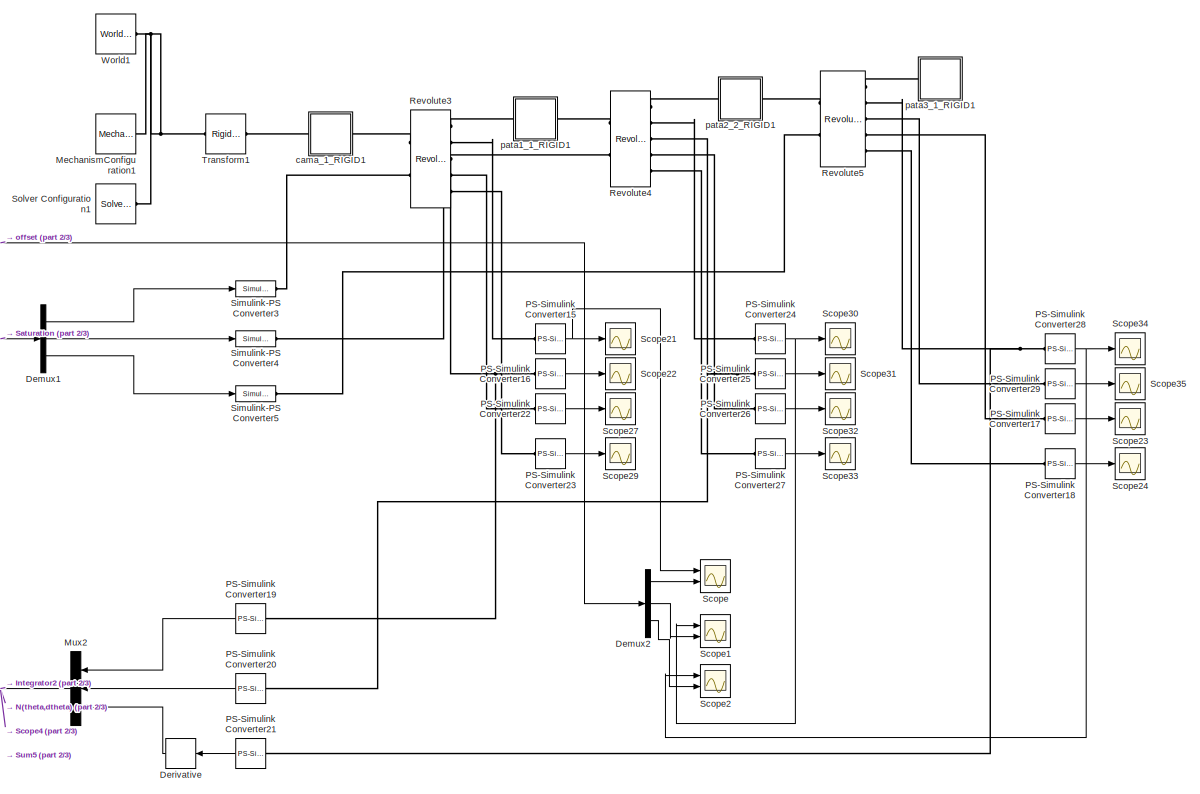
[diagram: root canvas - part 1/3, center side, full height]
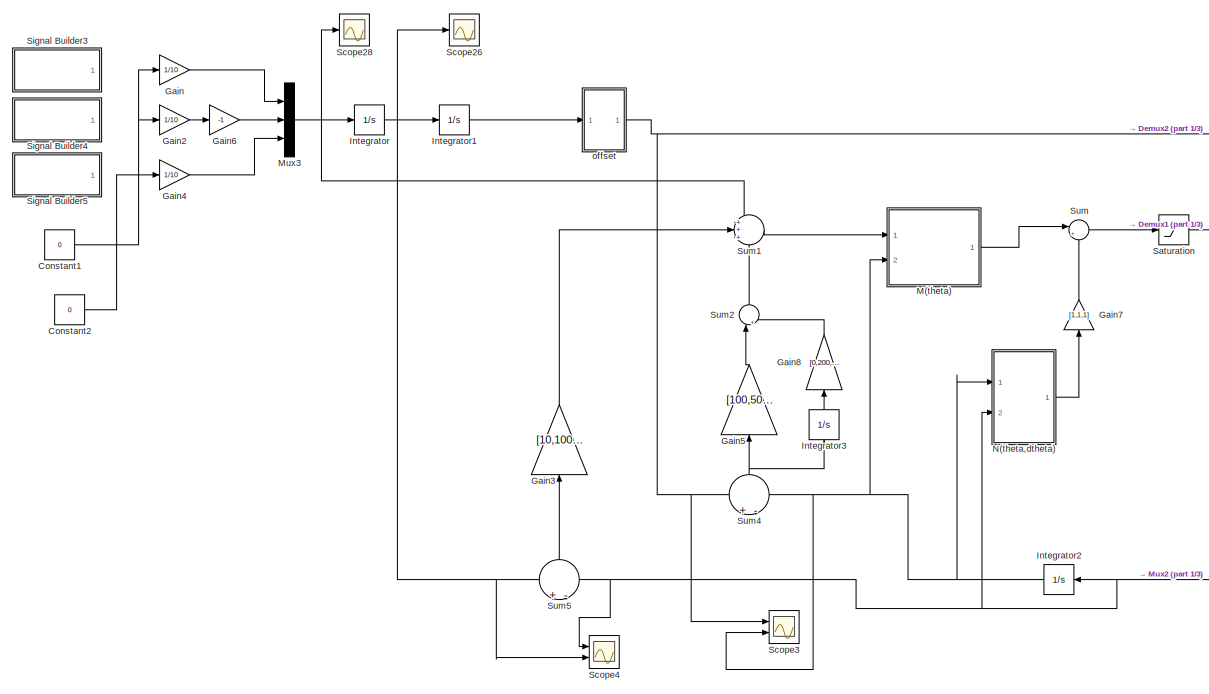
[diagram: root canvas - part 2/3, left side, full height]
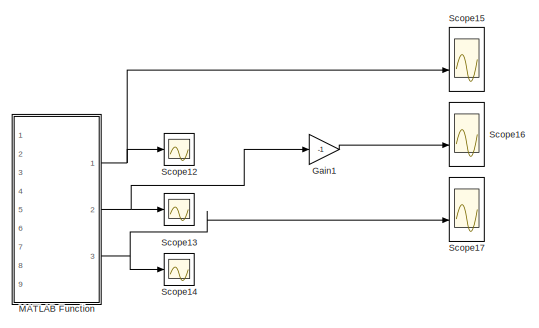
[diagram: root canvas - part 3/3, middle right region]
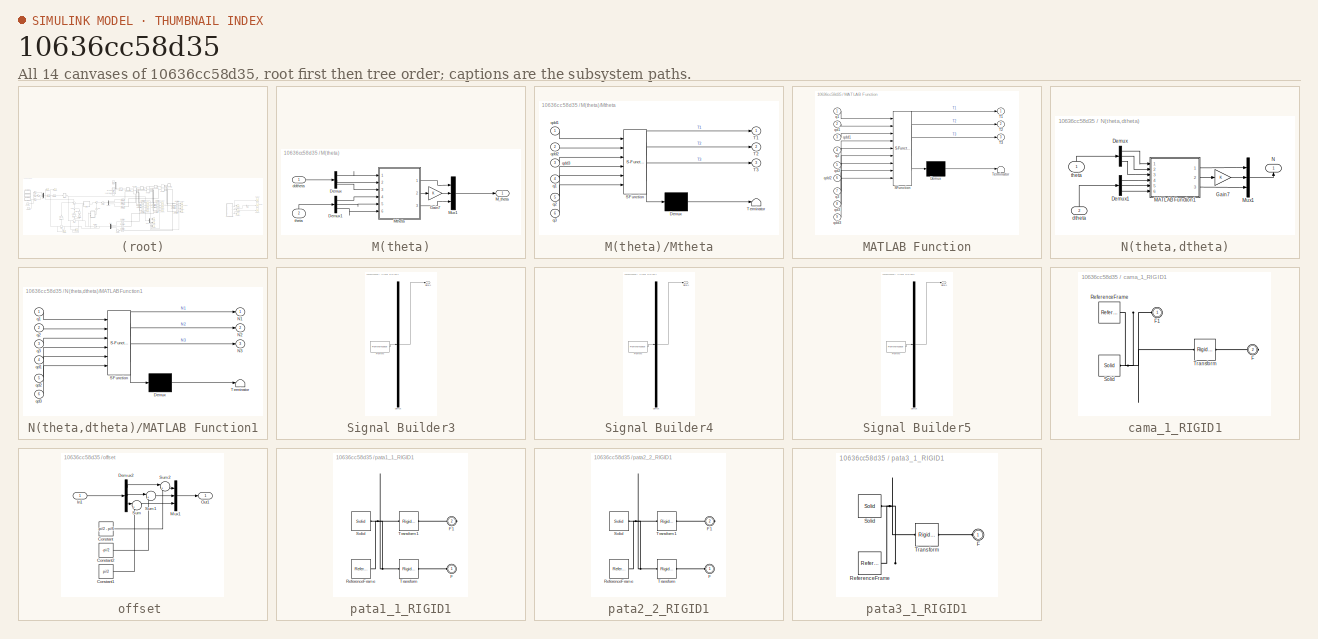
[diagram: thumbnail index - all 14 canvases of the model, root first then tree order]
MODEL slx_10636cc58d35
KIND model
CONFIG AbsTol = auto
CONFIG EnableMultiTasking = off
CONFIG FixedStep = auto
CONFIG MaxStep = auto
CONFIG MinStep = auto
CONFIG RelTol = 1e-3
CONFIG SampleTimeConstraint = Unconstrained
CONFIG Solver = VariableStepAuto
CONFIG SolverName = VariableStepAuto
CONFIG StartTime = 0.0
CONFIG StopTime = 30
WORKSPACE source: external: MATLAB File  (data not in archive)
BLOCK [Constant] Constant1
  Value = 0
BLOCK [Constant] Constant2
  Value = 0
BLOCK [Demux] Demux1
  DisplayOption = bar
  Outputs = 3
  Ports = [1, 3]
BLOCK [Demux] Demux2
  DisplayOption = bar
  Outputs = 3
  Ports = [1, 3]
BLOCK [Derivative] Derivative
BLOCK [Gain] Gain
  Gain = 1/10
  OutDataTypeStr = Inherit: Inherit via internal rule
  ParamDataTypeStr = Inherit: Inherit via internal rule
  SaturateOnIntegerOverflow = off
BLOCK [Gain] Gain1
  Commented = on
  Gain = -1
  OutDataTypeStr = Inherit: Inherit via internal rule
  ParamDataTypeStr = Inherit: Inherit via internal rule
  SaturateOnIntegerOverflow = off
BLOCK [Gain] Gain2
  Gain = 1/10
  OutDataTypeStr = Inherit: Inherit via internal rule
  ParamDataTypeStr = Inherit: Inherit via internal rule
  SaturateOnIntegerOverflow = off
BLOCK [Gain] Gain3
  Gain = [10,100,10]
  OutDataTypeStr = Inherit: Inherit via internal rule
  ParamDataTypeStr = Inherit: Inherit via internal rule
  SaturateOnIntegerOverflow = off
BLOCK [Gain] Gain4
  Gain = 1/10
  OutDataTypeStr = Inherit: Inherit via internal rule
  ParamDataTypeStr = Inherit: Inherit via internal rule
  SaturateOnIntegerOverflow = off
BLOCK [Gain] Gain5
  Gain = [100,500,10]
  OutDataTypeStr = Inherit: Inherit via internal rule
  ParamDataTypeStr = Inherit: Inherit via internal rule
  SaturateOnIntegerOverflow = off
BLOCK [Gain] Gain6
  Gain = -1
  OutDataTypeStr = Inherit: Inherit via internal rule
  ParamDataTypeStr = Inherit: Inherit via internal rule
  SaturateOnIntegerOverflow = off
BLOCK [Gain] Gain7
  Gain = [1,1,1]
  OutDataTypeStr = Inherit: Inherit via internal rule
  ParamDataTypeStr = Inherit: Inherit via internal rule
  SaturateOnIntegerOverflow = off
BLOCK [Gain] Gain8
  Gain = [0,200,2]
  OutDataTypeStr = Inherit: Inherit via internal rule
  ParamDataTypeStr = Inherit: Inherit via internal rule
  SaturateOnIntegerOverflow = off
BLOCK [Integrator] Integrator
  Ports = [1, 1]
BLOCK [Integrator] Integrator1
  Ports = [1, 1]
BLOCK [Integrator] Integrator2
  InitialCondition = [-pi/2 - pi/6,-pi/2,pi/2]
  Ports = [1, 1]
BLOCK [Integrator] Integrator3
  InitialCondition = [-pi/2 - pi/6,-pi/2,pi/2]
  Ports = [1, 1]
BLOCK [SubSystem] M(theta)
  Ports = [2, 1]
  RequestExecContextInheritance = off
  Variant = off
BLOCK [Demux] M(theta)/Demux
  DisplayOption = bar
  Outputs = 3
  Ports = [1, 3]
BLOCK [Demux] M(theta)/Demux1
  DisplayOption = bar
  Outputs = 3
  Ports = [1, 3]
BLOCK [Gain] M(theta)/Gain7
  OutDataTypeStr = Inherit: Inherit via internal rule
  ParamDataTypeStr = Inherit: Inherit via internal rule
  SaturateOnIntegerOverflow = off
BLOCK [Outport] M(theta)/M_theta
  IconDisplay = Port number
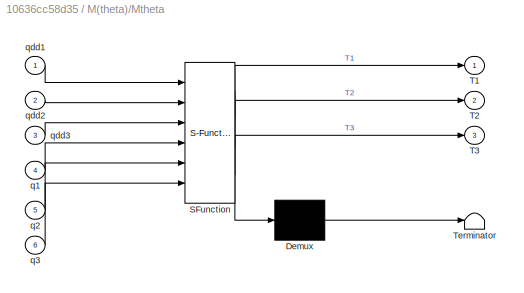
BLOCK [SubSystem] M(theta)/Mtheta
  ErrorFcn = Stateflow.Translate.translate
  PermitHierarchicalResolution = ExplicitOnly
  Ports = [6, 3]
  RequestExecContextInheritance = off
  SFBlockType = MATLAB Function
  TreatAsAtomicUnit = on
  Variant = off
BLOCK [Demux] M(theta)/Mtheta/ Demux 
  Outputs = 1
  Ports = [1, 1]
BLOCK [S-Function] M(theta)/Mtheta/ SFunction 
  EnableBusSupport = on
  FunctionName = sf_sfun
  PortCounts = [6 4]
  Ports = [6, 4]
  SFcnIsStateOwnerBlock = off
  SFunctionDeploymentMode = off
  Tag = Stateflow S-Function hex_simplify_mono 1
BLOCK [Terminator] M(theta)/Mtheta/ Terminator 
BLOCK [Outport] M(theta)/Mtheta/T1
  IconDisplay = Port number
BLOCK [Outport] M(theta)/Mtheta/T2
  IconDisplay = Port number
  Port = 2
BLOCK [Outport] M(theta)/Mtheta/T3
  IconDisplay = Port number
  Port = 3
BLOCK [Inport] M(theta)/Mtheta/q1
  IconDisplay = Port number
  Port = 4
BLOCK [Inport] M(theta)/Mtheta/q2
  IconDisplay = Port number
  Port = 5
BLOCK [Inport] M(theta)/Mtheta/q3
  IconDisplay = Port number
  Port = 6
BLOCK [Inport] M(theta)/Mtheta/qdd1
  IconDisplay = Port number
BLOCK [Inport] M(theta)/Mtheta/qdd2
  IconDisplay = Port number
  Port = 2
BLOCK [Inport] M(theta)/Mtheta/qdd3
  IconDisplay = Port number
  Port = 3
BLOCK [Mux] M(theta)/Mux1
  DisplayOption = bar
  Inputs = 3
  Ports = [3, 1]
BLOCK [Inport] M(theta)/ddtheta
  IconDisplay = Port number
BLOCK [Inport] M(theta)/theta
  IconDisplay = Port number
  Port = 2
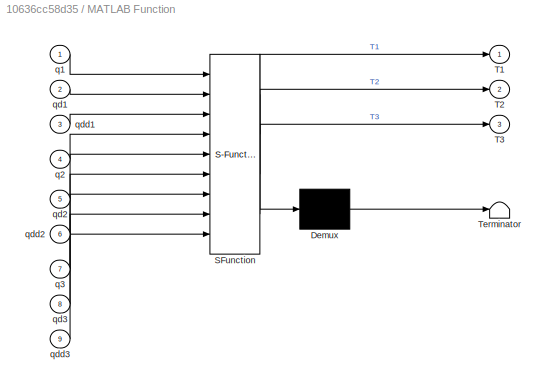
BLOCK [SubSystem] MATLAB Function
  Commented = on
  ErrorFcn = Stateflow.Translate.translate
  PermitHierarchicalResolution = ExplicitOnly
  Ports = [9, 3]
  RequestExecContextInheritance = off
  SFBlockType = MATLAB Function
  TreatAsAtomicUnit = on
  Variant = off
BLOCK [Demux] MATLAB Function/ Demux 
  Outputs = 1
  Ports = [1, 1]
BLOCK [S-Function] MATLAB Function/ SFunction 
  EnableBusSupport = on
  FunctionName = sf_sfun
  PortCounts = [9 4]
  Ports = [9, 4]
  SFcnIsStateOwnerBlock = off
  SFunctionDeploymentMode = off
  Tag = Stateflow S-Function hex_simplify_mono 2
BLOCK [Terminator] MATLAB Function/ Terminator 
BLOCK [Outport] MATLAB Function/T1
  IconDisplay = Port number
BLOCK [Outport] MATLAB Function/T2
  IconDisplay = Port number
  Port = 2
BLOCK [Outport] MATLAB Function/T3
  IconDisplay = Port number
  Port = 3
BLOCK [Inport] MATLAB Function/q1
  IconDisplay = Port number
BLOCK [Inport] MATLAB Function/q2
  IconDisplay = Port number
  Port = 4
BLOCK [Inport] MATLAB Function/q3
  IconDisplay = Port number
  Port = 7
BLOCK [Inport] MATLAB Function/qd1
  IconDisplay = Port number
  Port = 2
BLOCK [Inport] MATLAB Function/qd2
  IconDisplay = Port number
  Port = 5
BLOCK [Inport] MATLAB Function/qd3
  IconDisplay = Port number
  Port = 8
BLOCK [Inport] MATLAB Function/qdd1
  IconDisplay = Port number
  Port = 3
BLOCK [Inport] MATLAB Function/qdd2
  IconDisplay = Port number
  Port = 6
BLOCK [Inport] MATLAB Function/qdd3
  IconDisplay = Port number
  Port = 9
BLOCK [Reference] MechanismConfiguration1  REF=sm_lib/Utilities/Mechanism
Configuration
  Ports = [0, 0, 0, 0, 0, 0, 1]
  SourceBlock = sm_lib/Utilities/Mechanism\nConfiguration
  SourceProductBaseCode = MS
  SourceProductName = Simscape Multibody
  SourceType = Mechanism\nConfiguration
BLOCK [Mux] Mux2
  DisplayOption = bar
  Inputs = 3
  Ports = [3, 1]
BLOCK [Mux] Mux3
  DisplayOption = bar
  Inputs = 3
  Ports = [3, 1]
BLOCK [SubSystem] N(theta,dtheta)
  Ports = [2, 1]
  RequestExecContextInheritance = off
  Variant = off
BLOCK [Demux] N(theta,dtheta)/Demux
  DisplayOption = bar
  Outputs = 3
  Ports = [1, 3]
BLOCK [Demux] N(theta,dtheta)/Demux1
  DisplayOption = bar
  Outputs = 3
  Ports = [1, 3]
BLOCK [Gain] N(theta,dtheta)/Gain7
  OutDataTypeStr = Inherit: Inherit via internal rule
  ParamDataTypeStr = Inherit: Inherit via internal rule
  SaturateOnIntegerOverflow = off
BLOCK [SubSystem] N(theta,dtheta)/MATLAB Function1
  ErrorFcn = Stateflow.Translate.translate
  PermitHierarchicalResolution = ExplicitOnly
  Ports = [6, 3]
  RequestExecContextInheritance = off
  SFBlockType = MATLAB Function
  TreatAsAtomicUnit = on
  Variant = off
BLOCK [Demux] N(theta,dtheta)/MATLAB Function1/ Demux 
  Outputs = 1
  Ports = [1, 1]
BLOCK [S-Function] N(theta,dtheta)/MATLAB Function1/ SFunction 
  EnableBusSupport = on
  FunctionName = sf_sfun
  PortCounts = [6 4]
  Ports = [6, 4]
  SFcnIsStateOwnerBlock = off
  SFunctionDeploymentMode = off
  Tag = Stateflow S-Function hex_simplify_mono 3
BLOCK [Terminator] N(theta,dtheta)/MATLAB Function1/ Terminator 
BLOCK [Outport] N(theta,dtheta)/MATLAB Function1/N1
  IconDisplay = Port number
BLOCK [Outport] N(theta,dtheta)/MATLAB Function1/N2
  IconDisplay = Port number
  Port = 2
BLOCK [Outport] N(theta,dtheta)/MATLAB Function1/N3
  IconDisplay = Port number
  Port = 3
BLOCK [Inport] N(theta,dtheta)/MATLAB Function1/q1
  IconDisplay = Port number
BLOCK [Inport] N(theta,dtheta)/MATLAB Function1/q2
  IconDisplay = Port number
  Port = 2
BLOCK [Inport] N(theta,dtheta)/MATLAB Function1/q3
  IconDisplay = Port number
  Port = 3
BLOCK [Inport] N(theta,dtheta)/MATLAB Function1/qd1
  IconDisplay = Port number
  Port = 4
BLOCK [Inport] N(theta,dtheta)/MATLAB Function1/qd2
  IconDisplay = Port number
  Port = 5
BLOCK [Inport] N(theta,dtheta)/MATLAB Function1/qd3
  IconDisplay = Port number
  Port = 6
BLOCK [Mux] N(theta,dtheta)/Mux1
  DisplayOption = bar
  Inputs = 3
  Ports = [3, 1]
BLOCK [Outport] N(theta,dtheta)/N
  IconDisplay = Port number
BLOCK [Inport] N(theta,dtheta)/dtheta
  IconDisplay = Port number
  Port = 2
BLOCK [Inport] N(theta,dtheta)/theta
  IconDisplay = Port number
BLOCK [Reference] PS-Simulink Converter15  REF=nesl_utility/PS-Simulink
Converter
  Ports = [0, 1, 0, 0, 0, 1]
  SourceBlock = nesl_utility/PS-Simulink\nConverter
  SourceProductBaseCode = SS
  SourceProductName = Simscape
  SourceType = PS-Simulink\nConverter
BLOCK [Reference] PS-Simulink Converter16  REF=nesl_utility/PS-Simulink
Converter
  Ports = [0, 1, 0, 0, 0, 1]
  SourceBlock = nesl_utility/PS-Simulink\nConverter
  SourceProductBaseCode = SS
  SourceProductName = Simscape
  SourceType = PS-Simulink\nConverter
BLOCK [Reference] PS-Simulink Converter17  REF=nesl_utility/PS-Simulink
Converter
  Ports = [0, 1, 0, 0, 0, 1]
  SourceBlock = nesl_utility/PS-Simulink\nConverter
  SourceProductBaseCode = SS
  SourceProductName = Simscape
  SourceType = PS-Simulink\nConverter
BLOCK [Reference] PS-Simulink Converter18  REF=nesl_utility/PS-Simulink
Converter
  Ports = [0, 1, 0, 0, 0, 1]
  SourceBlock = nesl_utility/PS-Simulink\nConverter
  SourceProductBaseCode = SS
  SourceProductName = Simscape
  SourceType = PS-Simulink\nConverter
BLOCK [Reference] PS-Simulink Converter19  REF=nesl_utility/PS-Simulink
Converter
  Ports = [0, 1, 0, 0, 0, 1]
  SourceBlock = nesl_utility/PS-Simulink\nConverter
  SourceProductBaseCode = SS
  SourceProductName = Simscape
  SourceType = PS-Simulink\nConverter
BLOCK [Reference] PS-Simulink Converter20  REF=nesl_utility/PS-Simulink
Converter
  Ports = [0, 1, 0, 0, 0, 1]
  SourceBlock = nesl_utility/PS-Simulink\nConverter
  SourceProductBaseCode = SS
  SourceProductName = Simscape
  SourceType = PS-Simulink\nConverter
BLOCK [Reference] PS-Simulink Converter21  REF=nesl_utility/PS-Simulink
Converter
  Ports = [0, 1, 0, 0, 0, 1]
  SourceBlock = nesl_utility/PS-Simulink\nConverter
  SourceProductBaseCode = SS
  SourceProductName = Simscape
  SourceType = PS-Simulink\nConverter
BLOCK [Reference] PS-Simulink Converter22  REF=nesl_utility/PS-Simulink
Converter
  Ports = [0, 1, 0, 0, 0, 1]
  SourceBlock = nesl_utility/PS-Simulink\nConverter
  SourceProductBaseCode = SS
  SourceProductName = Simscape
  SourceType = PS-Simulink\nConverter
BLOCK [Reference] PS-Simulink Converter23  REF=nesl_utility/PS-Simulink
Converter
  Ports = [0, 1, 0, 0, 0, 1]
  SourceBlock = nesl_utility/PS-Simulink\nConverter
  SourceProductBaseCode = SS
  SourceProductName = Simscape
  SourceType = PS-Simulink\nConverter
BLOCK [Reference] PS-Simulink Converter24  REF=nesl_utility/PS-Simulink
Converter
  Ports = [0, 1, 0, 0, 0, 1]
  SourceBlock = nesl_utility/PS-Simulink\nConverter
  SourceProductBaseCode = SS
  SourceProductName = Simscape
  SourceType = PS-Simulink\nConverter
BLOCK [Reference] PS-Simulink Converter25  REF=nesl_utility/PS-Simulink
Converter
  Ports = [0, 1, 0, 0, 0, 1]
  SourceBlock = nesl_utility/PS-Simulink\nConverter
  SourceProductBaseCode = SS
  SourceProductName = Simscape
  SourceType = PS-Simulink\nConverter
BLOCK [Reference] PS-Simulink Converter26  REF=nesl_utility/PS-Simulink
Converter
  Ports = [0, 1, 0, 0, 0, 1]
  SourceBlock = nesl_utility/PS-Simulink\nConverter
  SourceProductBaseCode = SS
  SourceProductName = Simscape
  SourceType = PS-Simulink\nConverter
BLOCK [Reference] PS-Simulink Converter27  REF=nesl_utility/PS-Simulink
Converter
  Ports = [0, 1, 0, 0, 0, 1]
  SourceBlock = nesl_utility/PS-Simulink\nConverter
  SourceProductBaseCode = SS
  SourceProductName = Simscape
  SourceType = PS-Simulink\nConverter
BLOCK [Reference] PS-Simulink Converter28  REF=nesl_utility/PS-Simulink
Converter
  Ports = [0, 1, 0, 0, 0, 1]
  SourceBlock = nesl_utility/PS-Simulink\nConverter
  SourceProductBaseCode = SS
  SourceProductName = Simscape
  SourceType = PS-Simulink\nConverter
BLOCK [Reference] PS-Simulink Converter29  REF=nesl_utility/PS-Simulink
Converter
  Ports = [0, 1, 0, 0, 0, 1]
  SourceBlock = nesl_utility/PS-Simulink\nConverter
  SourceProductBaseCode = SS
  SourceProductName = Simscape
  SourceType = PS-Simulink\nConverter
BLOCK [Reference] Revolute3  REF=sm_lib/Joints/Revolute Joint
  Ports = [0, 0, 0, 0, 0, 2, 5]
  SourceBlock = sm_lib/Joints/Revolute Joint
  SourceProductBaseCode = MS
  SourceProductName = Simscape Multibody
  SourceType = Revolute Joint
BLOCK [Reference] Revolute4  REF=sm_lib/Joints/Revolute Joint
  Ports = [0, 0, 0, 0, 0, 2, 5]
  SourceBlock = sm_lib/Joints/Revolute Joint
  SourceProductBaseCode = MS
  SourceProductName = Simscape Multibody
  SourceType = Revolute Joint
BLOCK [Reference] Revolute5  REF=sm_lib/Joints/Revolute Joint
  Ports = [0, 0, 0, 0, 0, 2, 5]
  SourceBlock = sm_lib/Joints/Revolute Joint
  SourceProductBaseCode = MS
  SourceProductName = Simscape Multibody
  SourceType = Revolute Joint
BLOCK [Saturate] Saturation
  InputPortMap = u0
  LinearizeAsGain = off
  LowerLimit = -5
  Ports = [1, 1]
  UpperLimit = 5
  ZeroCross = off
BLOCK [Scope] Scope
  NumInputPorts = 2
  Ports = [2]
  ScopeSpecificationString = Simulink.scopes.TimeScopeBlockCfg('CurrentConfiguration', extmgr.ConfigurationSet(extmgr.Configuration('Core','General UI',true),extmgr.Configuration('Core','Source UI',true),extmgr.Configuration('Sources','WiredSimulink',true,'DataLoggingVariableName','ScopeData1'),extmgr.Configuration('Visuals','Time Domain',true,'SerializedDisplays',{struct('MinYLimReal','-3.0944','MaxYLimReal','-1.0944','YLabe...<+1433ch>
BLOCK [Scope] Scope1
  NumInputPorts = 2
  Ports = [2]
  ScopeSpecificationString = Simulink.scopes.TimeScopeBlockCfg('CurrentConfiguration', extmgr.ConfigurationSet(extmgr.Configuration('Core','General UI',true),extmgr.Configuration('Core','Source UI',true),extmgr.Configuration('Sources','WiredSimulink',true,'DataLoggingVariableName','ScopeData2'),extmgr.Configuration('Visuals','Time Domain',true,'SerializedDisplays',{struct('MinYLimReal','-2.71641','MaxYLimReal','-0.33459','YLa...<+1466ch>
BLOCK [Scope] Scope12
  Commented = on
  NumInputPorts = 1
  Ports = [1]
  ScopeSpecificationString = Simulink.scopes.TimeScopeBlockCfg('CurrentConfiguration', extmgr.ConfigurationSet(extmgr.Configuration('Core','General UI',true),extmgr.Configuration('Core','Source UI',true),extmgr.Configuration('Sources','WiredSimulink',true,'DataLoggingVariableName','ScopeData12'),extmgr.Configuration('Visuals','Time Domain',true,'SerializedDisplays',{struct('MinYLimReal','-1.71073','MaxYLimReal','2.60823','YLa...<+1378ch>
BLOCK [Scope] Scope13
  Commented = on
  NumInputPorts = 1
  Ports = [1]
  ScopeSpecificationString = Simulink.scopes.TimeScopeBlockCfg('CurrentConfiguration', extmgr.ConfigurationSet(extmgr.Configuration('Core','General UI',true),extmgr.Configuration('Core','Source UI',true),extmgr.Configuration('Sources','WiredSimulink',true,'DataLoggingVariableName','ScopeData13'),extmgr.Configuration('Visuals','Time Domain',true,'SerializedDisplays',{struct('MinYLimReal','-2.66054','MaxYLimReal','4.78696','YLa...<+1378ch>
BLOCK [Scope] Scope14
  Commented = on
  NumInputPorts = 1
  Ports = [1]
  ScopeSpecificationString = Simulink.scopes.TimeScopeBlockCfg('CurrentConfiguration', extmgr.ConfigurationSet(extmgr.Configuration('Core','General UI',true),extmgr.Configuration('Core','Source UI',true),extmgr.Configuration('Sources','WiredSimulink',true,'DataLoggingVariableName','ScopeData14'),extmgr.Configuration('Visuals','Time Domain',true,'SerializedDisplays',{struct('MinYLimReal','-1.39279','MaxYLimReal','2.22288','YLa...<+1378ch>
BLOCK [Scope] Scope15
  Commented = on
  NumInputPorts = 2
  Ports = [2]
  ScopeSpecificationString = Simulink.scopes.TimeScopeBlockCfg('CurrentConfiguration', extmgr.ConfigurationSet(extmgr.Configuration('Core','General UI',true),extmgr.Configuration('Core','Source UI',true),extmgr.Configuration('Sources','WiredSimulink',true,'DataLoggingVariableName','ScopeData15'),extmgr.Configuration('Visuals','Time Domain',true,'SerializedDisplays',{struct('MinYLimReal','-1.73276','MaxYLimReal','2.80646','YLa...<+1474ch>
BLOCK [Scope] Scope16
  Commented = on
  NumInputPorts = 2
  Ports = [2]
  ScopeSpecificationString = Simulink.scopes.TimeScopeBlockCfg('CurrentConfiguration', extmgr.ConfigurationSet(extmgr.Configuration('Core','General UI',true),extmgr.Configuration('Core','Source UI',true),extmgr.Configuration('Sources','WiredSimulink',true,'DataLoggingVariableName','ScopeData16'),extmgr.Configuration('Visuals','Time Domain',true,'SerializedDisplays',{struct('MinYLimReal','-5.27813','MaxYLimReal','4.47994','YLa...<+1436ch>
BLOCK [Scope] Scope17
  Commented = on
  NumInputPorts = 2
  Ports = [2]
  ScopeSpecificationString = Simulink.scopes.TimeScopeBlockCfg('CurrentConfiguration', extmgr.ConfigurationSet(extmgr.Configuration('Core','General UI',true),extmgr.Configuration('Core','Source UI',true),extmgr.Configuration('Sources','WiredSimulink',true,'DataLoggingVariableName','ScopeData17'),extmgr.Configuration('Visuals','Time Domain',true,'SerializedDisplays',{struct('MinYLimReal','-1.4086','MaxYLimReal','2.36511','YLab...<+1427ch>
BLOCK [Scope] Scope2
  NumInputPorts = 2
  Ports = [2]
  ScopeSpecificationString = Simulink.scopes.TimeScopeBlockCfg('CurrentConfiguration', extmgr.ConfigurationSet(extmgr.Configuration('Core','General UI',true),extmgr.Configuration('Core','Source UI',true),extmgr.Configuration('Sources','WiredSimulink',true,'DataLoggingVariableName','ScopeData3'),extmgr.Configuration('Visuals','Time Domain',true,'SerializedDisplays',{struct('MinYLimReal','-20.44371','MaxYLimReal','94.03611','YL...<+1443ch>
BLOCK [Scope] Scope21
  NumInputPorts = 1
  Ports = [1]
  ScopeSpecificationString = Simulink.scopes.TimeScopeBlockCfg('CurrentConfiguration', extmgr.ConfigurationSet(extmgr.Configuration('Core','General UI',true),extmgr.Configuration('Core','Source UI',true),extmgr.Configuration('Sources','WiredSimulink',true,'DataLoggingVariableName','ScopeData4'),extmgr.Configuration('Visuals','Time Domain',true,'SerializedDisplays',{struct('MinYLimReal','-2.12269','MaxYLimReal','-2.02343','YLa...<+1403ch>
BLOCK [Scope] Scope22
  NumInputPorts = 1
  Ports = [1]
  ScopeSpecificationString = Simulink.scopes.TimeScopeBlockCfg('CurrentConfiguration', extmgr.ConfigurationSet(extmgr.Configuration('Core','General UI',true),extmgr.Configuration('Core','Source UI',true),extmgr.Configuration('Sources','WiredSimulink',true,'DataLoggingVariableName','ScopeData5'),extmgr.Configuration('Visuals','Time Domain',true,'SerializedDisplays',{struct('MinYLimReal','-0.11777','MaxYLimReal','1.05997','YLab...<+1382ch>
BLOCK [Scope] Scope23
  NumInputPorts = 1
  Ports = [1]
  ScopeSpecificationString = Simulink.scopes.TimeScopeBlockCfg('CurrentConfiguration', extmgr.ConfigurationSet(extmgr.Configuration('Core','General UI',true),extmgr.Configuration('Core','Source UI',true),extmgr.Configuration('Sources','WiredSimulink',true,'DataLoggingVariableName','ScopeData6'),extmgr.Configuration('Visuals','Time Domain',true,'SerializedDisplays',{struct('MinYLimReal','-286.75993','MaxYLimReal','487.41185','...<+1415ch>
BLOCK [Scope] Scope24
  NumInputPorts = 1
  Ports = [1]
  ScopeSpecificationString = Simulink.scopes.TimeScopeBlockCfg('CurrentConfiguration', extmgr.ConfigurationSet(extmgr.Configuration('Core','General UI',true),extmgr.Configuration('Core','Source UI',true),extmgr.Configuration('Sources','WiredSimulink',true,'DataLoggingVariableName','ScopeData7'),extmgr.Configuration('Visuals','Time Domain',true,'SerializedDisplays',{struct('MinYLimReal','-5.87802','MaxYLimReal','2.9022','YLabe...<+1380ch>
BLOCK [Scope] Scope26
  NumInputPorts = 1
  Ports = [1]
  ScopeSpecificationString = Simulink.scopes.TimeScopeBlockCfg('CurrentConfiguration', extmgr.ConfigurationSet(extmgr.Configuration('Core','General UI',true),extmgr.Configuration('Core','Source UI',true),extmgr.Configuration('Sources','WiredSimulink',true,'DataLoggingVariableName','ScopeData9'),extmgr.Configuration('Visuals','Time Domain',true,'SerializedDisplays',{struct('MinYLimReal','-1.00000','MaxYLimReal','1.00000','YLab...<+1401ch>
BLOCK [Scope] Scope27
  NumInputPorts = 1
  Ports = [1]
  ScopeSpecificationString = Simulink.scopes.TimeScopeBlockCfg('CurrentConfiguration', extmgr.ConfigurationSet(extmgr.Configuration('Core','General UI',true),extmgr.Configuration('Core','Source UI',true),extmgr.Configuration('Sources','WiredSimulink',true,'DataLoggingVariableName','ScopeData10'),extmgr.Configuration('Visuals','Time Domain',true,'SerializedDisplays',{struct('MinYLimReal','-0.0000000000041','MaxYLimReal','0.000...<+1472ch>
BLOCK [Scope] Scope28
  NumInputPorts = 1
  Ports = [1]
  ScopeSpecificationString = Simulink.scopes.TimeScopeBlockCfg('CurrentConfiguration', extmgr.ConfigurationSet(extmgr.Configuration('Core','General UI',true),extmgr.Configuration('Core','Source UI',true),extmgr.Configuration('Sources','WiredSimulink',true,'DataLoggingVariableName','ScopeData11'),extmgr.Configuration('Visuals','Time Domain',true,'SerializedDisplays',{struct('MinYLimReal','-1.00000','MaxYLimReal','1.00000','YLa...<+1380ch>
BLOCK [Scope] Scope29
  NumInputPorts = 1
  Ports = [1]
  ScopeSpecificationString = Simulink.scopes.TimeScopeBlockCfg('CurrentConfiguration', extmgr.ConfigurationSet(extmgr.Configuration('Core','General UI',true),extmgr.Configuration('Core','Source UI',true),extmgr.Configuration('Sources','WiredSimulink',true,'DataLoggingVariableName','ScopeData12'),extmgr.Configuration('Visuals','Time Domain',true,'SerializedDisplays',{struct('MinYLimReal','-0.000000000000005','MaxYLimReal','0.0...<+1484ch>
BLOCK [Scope] Scope3
  NumInputPorts = 2
  Ports = [2]
  ScopeSpecificationString = Simulink.scopes.TimeScopeBlockCfg('CurrentConfiguration', extmgr.ConfigurationSet(extmgr.Configuration('Core','General UI',true),extmgr.Configuration('Core','Source UI',true),extmgr.Configuration('Sources','WiredSimulink',true,'DataLoggingVariableName','ScopeData4'),extmgr.Configuration('Visuals','Time Domain',true,'SerializedDisplays',{struct('MinYLimReal','-1030.44751','MaxYLimReal','116.2395','...<+1500ch>
BLOCK [Scope] Scope30
  NumInputPorts = 1
  Ports = [1]
  ScopeSpecificationString = Simulink.scopes.TimeScopeBlockCfg('CurrentConfiguration', extmgr.ConfigurationSet(extmgr.Configuration('Core','General UI',true),extmgr.Configuration('Core','Source UI',true),extmgr.Configuration('Sources','WiredSimulink',true,'DataLoggingVariableName','ScopeData13'),extmgr.Configuration('Visuals','Time Domain',true,'SerializedDisplays',{struct('MinYLimReal','-2.44752','MaxYLimReal','-0.36453','YL...<+1385ch>
BLOCK [Scope] Scope31
  NumInputPorts = 1
  Ports = [1]
  ScopeSpecificationString = Simulink.scopes.TimeScopeBlockCfg('CurrentConfiguration', extmgr.ConfigurationSet(extmgr.Configuration('Core','General UI',true),extmgr.Configuration('Core','Source UI',true),extmgr.Configuration('Sources','WiredSimulink',true,'DataLoggingVariableName','ScopeData14'),extmgr.Configuration('Visuals','Time Domain',true,'SerializedDisplays',{struct('MinYLimReal','-1.21817','MaxYLimReal','1.57384','YLa...<+1383ch>
BLOCK [Scope] Scope32
  NumInputPorts = 1
  Ports = [1]
  ScopeSpecificationString = Simulink.scopes.TimeScopeBlockCfg('CurrentConfiguration', extmgr.ConfigurationSet(extmgr.Configuration('Core','General UI',true),extmgr.Configuration('Core','Source UI',true),extmgr.Configuration('Sources','WiredSimulink',true,'DataLoggingVariableName','ScopeData15'),extmgr.Configuration('Visuals','Time Domain',true,'SerializedDisplays',{struct('MinYLimReal','-0.20439','MaxYLimReal','0.07084','YLa...<+1402ch>
BLOCK [Scope] Scope33
  NumInputPorts = 1
  Ports = [1]
  ScopeSpecificationString = Simulink.scopes.TimeScopeBlockCfg('CurrentConfiguration', extmgr.ConfigurationSet(extmgr.Configuration('Core','General UI',true),extmgr.Configuration('Core','Source UI',true),extmgr.Configuration('Sources','WiredSimulink',true,'DataLoggingVariableName','ScopeData16'),extmgr.Configuration('Visuals','Time Domain',true,'SerializedDisplays',{struct('MinYLimReal','-5.9551','MaxYLimReal','3.58926','YLab...<+1379ch>
BLOCK [Scope] Scope34
  NumInputPorts = 1
  Ports = [1]
  ScopeSpecificationString = Simulink.scopes.TimeScopeBlockCfg('CurrentConfiguration', extmgr.ConfigurationSet(extmgr.Configuration('Core','General UI',true),extmgr.Configuration('Core','Source UI',true),extmgr.Configuration('Sources','WiredSimulink',true,'DataLoggingVariableName','ScopeData17'),extmgr.Configuration('Visuals','Time Domain',true,'SerializedDisplays',{struct('MinYLimReal','1.13547','MaxYLimReal','1.79548','YLab...<+1400ch>
BLOCK [Scope] Scope35
  NumInputPorts = 1
  Ports = [1]
  ScopeSpecificationString = Simulink.scopes.TimeScopeBlockCfg('CurrentConfiguration', extmgr.ConfigurationSet(extmgr.Configuration('Core','General UI',true),extmgr.Configuration('Core','Source UI',true),extmgr.Configuration('Sources','WiredSimulink',true,'DataLoggingVariableName','ScopeData18'),extmgr.Configuration('Visuals','Time Domain',true,'SerializedDisplays',{struct('MinYLimReal','-34.55226','MaxYLimReal','18.56338','Y...<+1389ch>
BLOCK [Scope] Scope4
  NumInputPorts = 2
  Ports = [2]
  ScopeSpecificationString = Simulink.scopes.TimeScopeBlockCfg('CurrentConfiguration', extmgr.ConfigurationSet(extmgr.Configuration('Core','General UI',true),extmgr.Configuration('Core','Source UI',true),extmgr.Configuration('Sources','WiredSimulink',true,'DataLoggingVariableName','ScopeData5'),extmgr.Configuration('Visuals','Time Domain',true,'SerializedDisplays',{struct('MinYLimReal','-2393385.24195','MaxYLimReal','675727.3...<+1552ch>
BLOCK [SubSystem] Signal Builder3
  ClipboardFcn = sigbuilder_block('clipboard');
  CloseFcn = sigbuilder_block('close');
  ContinueFcn = sigbuilder_block('continue');
  CopyFcn = sigbuilder_block('copy');
  DeleteFcn = sigbuilder_block('delete');
  LoadFcn = sigbuilder_block('load');
  MaskHideContents = on
  ModelCloseFcn = sigbuilder_block('modelClose');
  NameChangeFcn = sigbuilder_block('namechange');
  OpenFcn = sigbuilder_block('open',[319.5 111 550.5 359.25 ]);
  PauseFcn = sigbuilder_block('pause');
  Ports = [0, 1]
  PreSaveFcn = sigbuilder_block('preSave');
  RequestExecContextInheritance = off
  StartFcn = sigbuilder_block('start');
  StopFcn = sigbuilder_block('stop');
  Tag = STV Subsys
  Variant = off
BLOCK [Demux] Signal Builder3/Demux
  Outputs = 1
  Ports = [1, 1]
  Tag = STV Demux
BLOCK [FromWorkspace] Signal Builder3/FromWs
  SampleTime = 0
  Tag = STV FromWs
  VariableName = tuvar
  ZeroCross = on
BLOCK [Outport] Signal Builder3/Signal 1
  IconDisplay = Port number
  Tag = STV Outport
BLOCK [SubSystem] Signal Builder4
  ClipboardFcn = sigbuilder_block('clipboard');
  CloseFcn = sigbuilder_block('close');
  ContinueFcn = sigbuilder_block('continue');
  CopyFcn = sigbuilder_block('copy');
  DeleteFcn = sigbuilder_block('delete');
  LoadFcn = sigbuilder_block('load');
  MaskHideContents = on
  ModelCloseFcn = sigbuilder_block('modelClose');
  NameChangeFcn = sigbuilder_block('namechange');
  OpenFcn = sigbuilder_block('open',[319.5 111 550.5 359.25 ]);
  PauseFcn = sigbuilder_block('pause');
  Ports = [0, 1]
  PreSaveFcn = sigbuilder_block('preSave');
  RequestExecContextInheritance = off
  StartFcn = sigbuilder_block('start');
  StopFcn = sigbuilder_block('stop');
  Tag = STV Subsys
  Variant = off
BLOCK [Demux] Signal Builder4/Demux
  Outputs = 1
  Ports = [1, 1]
  Tag = STV Demux
BLOCK [FromWorkspace] Signal Builder4/FromWs
  SampleTime = 0
  Tag = STV FromWs
  VariableName = tuvar
  ZeroCross = on
BLOCK [Outport] Signal Builder4/Signal 1
  IconDisplay = Port number
  Tag = STV Outport
BLOCK [SubSystem] Signal Builder5
  ClipboardFcn = sigbuilder_block('clipboard');
  CloseFcn = sigbuilder_block('close');
  ContinueFcn = sigbuilder_block('continue');
  CopyFcn = sigbuilder_block('copy');
  DeleteFcn = sigbuilder_block('delete');
  LoadFcn = sigbuilder_block('load');
  MaskHideContents = on
  ModelCloseFcn = sigbuilder_block('modelClose');
  NameChangeFcn = sigbuilder_block('namechange');
  OpenFcn = sigbuilder_block('open',[319.5 111 550.5 359.25 ]);
  PauseFcn = sigbuilder_block('pause');
  Ports = [0, 1]
  PreSaveFcn = sigbuilder_block('preSave');
  RequestExecContextInheritance = off
  StartFcn = sigbuilder_block('start');
  StopFcn = sigbuilder_block('stop');
  Tag = STV Subsys
  Variant = off
BLOCK [Demux] Signal Builder5/Demux
  Outputs = 1
  Ports = [1, 1]
  Tag = STV Demux
BLOCK [FromWorkspace] Signal Builder5/FromWs
  SampleTime = 0
  Tag = STV FromWs
  VariableName = tuvar
  ZeroCross = on
BLOCK [Outport] Signal Builder5/Signal 1
  IconDisplay = Port number
  Tag = STV Outport
BLOCK [Reference] Simulink-PS Converter3  REF=nesl_utility/Simulink-PS
Converter
  Ports = [1, 0, 0, 0, 0, 0, 1]
  SourceBlock = nesl_utility/Simulink-PS\nConverter
  SourceProductBaseCode = SS
  SourceProductName = Simscape
  SourceType = Simulink-PS\nConverter
BLOCK [Reference] Simulink-PS Converter4  REF=nesl_utility/Simulink-PS
Converter
  Ports = [1, 0, 0, 0, 0, 0, 1]
  SourceBlock = nesl_utility/Simulink-PS\nConverter
  SourceProductBaseCode = SS
  SourceProductName = Simscape
  SourceType = Simulink-PS\nConverter
BLOCK [Reference] Simulink-PS Converter5  REF=nesl_utility/Simulink-PS
Converter
  Ports = [1, 0, 0, 0, 0, 0, 1]
  SourceBlock = nesl_utility/Simulink-PS\nConverter
  SourceProductBaseCode = SS
  SourceProductName = Simscape
  SourceType = Simulink-PS\nConverter
BLOCK [Reference] Solver Configuration1  REF=nesl_utility/Solver
Configuration
  Ports = [0, 0, 0, 0, 0, 0, 1]
  SourceBlock = nesl_utility/Solver\nConfiguration
  SourceProductBaseCode = SS
  SourceProductName = Simscape
  SourceType = Solver\nConfiguration
BLOCK [Sum] Sum
  IconShape = round
  InputSameDT = off
  Inputs = |++
  OutDataTypeStr = Inherit: Inherit via internal rule
  Ports = [2, 1]
  SaturateOnIntegerOverflow = off
BLOCK [Sum] Sum1
  IconShape = round
  InputSameDT = off
  Inputs = +++
  OutDataTypeStr = Inherit: Inherit via internal rule
  Ports = [3, 1]
  SaturateOnIntegerOverflow = off
BLOCK [Sum] Sum2
  IconShape = round
  InputSameDT = off
  Inputs = |++
  OutDataTypeStr = Inherit: Inherit via internal rule
  Ports = [2, 1]
  SaturateOnIntegerOverflow = off
BLOCK [Sum] Sum4
  IconShape = round
  InputSameDT = off
  Inputs = +-
  OutDataTypeStr = Inherit: Inherit via internal rule
  Ports = [2, 1]
  SaturateOnIntegerOverflow = off
BLOCK [Sum] Sum5
  IconShape = round
  InputSameDT = off
  Inputs = +-
  OutDataTypeStr = Inherit: Inherit via internal rule
  Ports = [2, 1]
  SaturateOnIntegerOverflow = off
BLOCK [Reference] Transform1  REF=sm_lib/Frames and
Transforms/Rigid
Transform
  Ports = [0, 0, 0, 0, 0, 1, 1]
  SourceBlock = sm_lib/Frames and\nTransforms/Rigid\nTransform
  SourceProductBaseCode = MS
  SourceProductName = Simscape Multibody
  SourceType = Rigid\nTransform
BLOCK [Reference] World1  REF=sm_lib/Frames and
Transforms/World Frame
  Ports = [0, 0, 0, 0, 0, 0, 1]
  SourceBlock = sm_lib/Frames and\nTransforms/World Frame
  SourceProductBaseCode = MS
  SourceProductName = Simscape Multibody
  SourceType = World Frame
BLOCK [SubSystem] cama_1_RIGID1
  Ports = [0, 0, 0, 0, 0, 1, 1]
  RequestExecContextInheritance = off
  Variant = off
BLOCK [PMIOPort] cama_1_RIGID1/F
  Port = 2
  Side = Right
BLOCK [PMIOPort] cama_1_RIGID1/F1
  Port = 1
  Side = Left
BLOCK [Reference] cama_1_RIGID1/ReferenceFrame  REF=sm_lib/Frames and
Transforms/Reference
Frame
  Ports = [0, 0, 0, 0, 0, 0, 1]
  SourceBlock = sm_lib/Frames and\nTransforms/Reference\nFrame
  SourceProductBaseCode = MS
  SourceProductName = Simscape Multibody
  SourceType = Reference\nFrame
BLOCK [Reference] cama_1_RIGID1/Solid  REF=sm_lib/Body Elements/Solid
  Ports = [0, 0, 0, 0, 0, 0, 1]
  SourceBlock = sm_lib/Body Elements/Solid
  SourceProductBaseCode = MS
  SourceProductName = Simscape Multibody
  SourceType = Solid
BLOCK [Reference] cama_1_RIGID1/Transform  REF=sm_lib/Frames and
Transforms/Rigid
Transform
  Ports = [0, 0, 0, 0, 0, 1, 1]
  SourceBlock = sm_lib/Frames and\nTransforms/Rigid\nTransform
  SourceProductBaseCode = MS
  SourceProductName = Simscape Multibody
  SourceType = Rigid\nTransform
BLOCK [SubSystem] offset 
  Ports = [1, 1]
  RequestExecContextInheritance = off
  Variant = off
BLOCK [Constant] offset /Constant
  Value = -pi/2 - pi/6
BLOCK [Constant] offset /Constant1
  Value = pi/2
BLOCK [Constant] offset /Constant2
  Value = -pi/2
BLOCK [Demux] offset /Demux2
  DisplayOption = bar
  Outputs = 3
  Ports = [1, 3]
BLOCK [Inport] offset /In1
  IconDisplay = Port number
BLOCK [Mux] offset /Mux1
  DisplayOption = bar
  Inputs = 3
  Ports = [3, 1]
BLOCK [Outport] offset /Out1
  IconDisplay = Port number
BLOCK [Sum] offset /Sum
  IconShape = round
  InputSameDT = off
  Inputs = |++
  OutDataTypeStr = Inherit: Inherit via internal rule
  Ports = [2, 1]
  SaturateOnIntegerOverflow = off
BLOCK [Sum] offset /Sum1
  IconShape = round
  InputSameDT = off
  Inputs = |++
  OutDataTypeStr = Inherit: Inherit via internal rule
  Ports = [2, 1]
  SaturateOnIntegerOverflow = off
BLOCK [Sum] offset /Sum2
  IconShape = round
  InputSameDT = off
  Inputs = |++
  OutDataTypeStr = Inherit: Inherit via internal rule
  Ports = [2, 1]
  SaturateOnIntegerOverflow = off
BLOCK [SubSystem] pata1_1_RIGID1
  Ports = [0, 0, 0, 0, 0, 1, 1]
  RequestExecContextInheritance = off
  Variant = off
BLOCK [PMIOPort] pata1_1_RIGID1/F
  Port = 1
  Side = Left
BLOCK [PMIOPort] pata1_1_RIGID1/F1
  Port = 2
  Side = Right
BLOCK [Reference] pata1_1_RIGID1/ReferenceFrame  REF=sm_lib/Frames and
Transforms/Reference
Frame
  Ports = [0, 0, 0, 0, 0, 0, 1]
  SourceBlock = sm_lib/Frames and\nTransforms/Reference\nFrame
  SourceProductBaseCode = MS
  SourceProductName = Simscape Multibody
  SourceType = Reference\nFrame
BLOCK [Reference] pata1_1_RIGID1/Solid  REF=sm_lib/Body Elements/Solid
  Ports = [0, 0, 0, 0, 0, 0, 1]
  SourceBlock = sm_lib/Body Elements/Solid
  SourceProductBaseCode = MS
  SourceProductName = Simscape Multibody
  SourceType = Solid
BLOCK [Reference] pata1_1_RIGID1/Transform  REF=sm_lib/Frames and
Transforms/Rigid
Transform
  Ports = [0, 0, 0, 0, 0, 1, 1]
  SourceBlock = sm_lib/Frames and\nTransforms/Rigid\nTransform
  SourceProductBaseCode = MS
  SourceProductName = Simscape Multibody
  SourceType = Rigid\nTransform
BLOCK [Reference] pata1_1_RIGID1/Transform1  REF=sm_lib/Frames and
Transforms/Rigid
Transform
  Ports = [0, 0, 0, 0, 0, 1, 1]
  SourceBlock = sm_lib/Frames and\nTransforms/Rigid\nTransform
  SourceProductBaseCode = MS
  SourceProductName = Simscape Multibody
  SourceType = Rigid\nTransform
BLOCK [SubSystem] pata2_2_RIGID1
  Ports = [0, 0, 0, 0, 0, 1, 1]
  RequestExecContextInheritance = off
  Variant = off
BLOCK [PMIOPort] pata2_2_RIGID1/F
  Port = 1
  Side = Left
BLOCK [PMIOPort] pata2_2_RIGID1/F1
  Port = 2
  Side = Right
BLOCK [Reference] pata2_2_RIGID1/ReferenceFrame  REF=sm_lib/Frames and
Transforms/Reference
Frame
  Ports = [0, 0, 0, 0, 0, 0, 1]
  SourceBlock = sm_lib/Frames and\nTransforms/Reference\nFrame
  SourceProductBaseCode = MS
  SourceProductName = Simscape Multibody
  SourceType = Reference\nFrame
BLOCK [Reference] pata2_2_RIGID1/Solid  REF=sm_lib/Body Elements/Solid
  Ports = [0, 0, 0, 0, 0, 0, 1]
  SourceBlock = sm_lib/Body Elements/Solid
  SourceProductBaseCode = MS
  SourceProductName = Simscape Multibody
  SourceType = Solid
BLOCK [Reference] pata2_2_RIGID1/Transform  REF=sm_lib/Frames and
Transforms/Rigid
Transform
  Ports = [0, 0, 0, 0, 0, 1, 1]
  SourceBlock = sm_lib/Frames and\nTransforms/Rigid\nTransform
  SourceProductBaseCode = MS
  SourceProductName = Simscape Multibody
  SourceType = Rigid\nTransform
BLOCK [Reference] pata2_2_RIGID1/Transform1  REF=sm_lib/Frames and
Transforms/Rigid
Transform
  Ports = [0, 0, 0, 0, 0, 1, 1]
  SourceBlock = sm_lib/Frames and\nTransforms/Rigid\nTransform
  SourceProductBaseCode = MS
  SourceProductName = Simscape Multibody
  SourceType = Rigid\nTransform
BLOCK [SubSystem] pata3_1_RIGID1
  Ports = [0, 0, 0, 0, 0, 1]
  RequestExecContextInheritance = off
  Variant = off
BLOCK [PMIOPort] pata3_1_RIGID1/F
  Port = 1
  Side = Left
BLOCK [Reference] pata3_1_RIGID1/ReferenceFrame  REF=sm_lib/Frames and
Transforms/Reference
Frame
  Ports = [0, 0, 0, 0, 0, 0, 1]
  SourceBlock = sm_lib/Frames and\nTransforms/Reference\nFrame
  SourceProductBaseCode = MS
  SourceProductName = Simscape Multibody
  SourceType = Reference\nFrame
BLOCK [Reference] pata3_1_RIGID1/Solid  REF=sm_lib/Body Elements/Solid
  Ports = [0, 0, 0, 0, 0, 0, 1]
  SourceBlock = sm_lib/Body Elements/Solid
  SourceProductBaseCode = MS
  SourceProductName = Simscape Multibody
  SourceType = Solid
BLOCK [Reference] pata3_1_RIGID1/Transform  REF=sm_lib/Frames and
Transforms/Rigid
Transform
  Ports = [0, 0, 0, 0, 0, 1, 1]
  SourceBlock = sm_lib/Frames and\nTransforms/Rigid\nTransform
  SourceProductBaseCode = MS
  SourceProductName = Simscape Multibody
  SourceType = Rigid\nTransform
NET Constant1:1 -> Gain2:1, Gain:1
LINE Constant2:1 -> Gain4:1
LINE Demux1:1 -> Simulink-PS Converter3:1
LINE Demux1:2 -> Simulink-PS Converter4:1
LINE Demux1:3 -> Simulink-PS Converter5:1
LINE Demux2:1 -> Scope:2
LINE Demux2:2 -> Scope1:2
LINE Demux2:3 -> Scope2:2
LINE Derivative:1 -> Mux2:3
LINE Gain1:1 -> Scope16:2
LINE Gain2:1 -> Gain6:1
LINE Gain3:1 -> Sum1:2
LINE Gain4:1 -> Mux3:3
LINE Gain5:1 -> Sum2:1
LINE Gain6:1 -> Mux3:2
LINE Gain7:1 -> Sum:2
LINE Gain8:1 -> Sum2:2
LINE Gain:1 -> Mux3:1
LINE Integrator1:1 -> offset :1
NET Integrator2:1 -> M(theta):2, N(theta,dtheta):1, Scope3:2, Sum4:2
LINE Integrator3:1 -> Gain8:1
NET Integrator:1 -> Integrator1:1, Scope26:1, Scope4:2, Sum5:1
LINE M(theta)/Demux1:1 -> M(theta)/Mtheta:4
LINE M(theta)/Demux1:2 -> M(theta)/Mtheta:5
LINE M(theta)/Demux1:3 -> M(theta)/Mtheta:6
LINE M(theta)/Demux:1 -> M(theta)/Mtheta:1
LINE M(theta)/Demux:2 -> M(theta)/Mtheta:2
LINE M(theta)/Demux:3 -> M(theta)/Mtheta:3
LINE M(theta)/Gain7:1 -> M(theta)/Mux1:2
LINE M(theta)/Mtheta:1 -> M(theta)/Mux1:1
LINE M(theta)/Mtheta:2 -> M(theta)/Gain7:1
LINE M(theta)/Mtheta:3 -> M(theta)/Mux1:3
LINE M(theta)/Mux1:1 -> M(theta)/M_theta:1
LINE M(theta)/ddtheta:1 -> M(theta)/Demux:1
LINE M(theta)/theta:1 -> M(theta)/Demux1:1
LINE M(theta):1 -> Sum:1
NET MATLAB Function:1 -> Scope12:1, Scope15:2
NET MATLAB Function:2 -> Gain1:1, Scope13:1
NET MATLAB Function:3 -> Scope14:1, Scope17:2
NET Mux2:1 -> Integrator2:1, N(theta,dtheta):2, Scope4:1, Sum5:2
NET Mux3:1 -> Integrator:1, Scope28:1, Sum1:1
LINE N(theta,dtheta)/Demux1:1 -> N(theta,dtheta)/MATLAB Function1:4
LINE N(theta,dtheta)/Demux1:2 -> N(theta,dtheta)/MATLAB Function1:5
LINE N(theta,dtheta)/Demux1:3 -> N(theta,dtheta)/MATLAB Function1:6
LINE N(theta,dtheta)/Demux:1 -> N(theta,dtheta)/MATLAB Function1:1
LINE N(theta,dtheta)/Demux:2 -> N(theta,dtheta)/MATLAB Function1:2
LINE N(theta,dtheta)/Demux:3 -> N(theta,dtheta)/MATLAB Function1:3
LINE N(theta,dtheta)/Gain7:1 -> N(theta,dtheta)/Mux1:2
LINE N(theta,dtheta)/MATLAB Function1:1 -> N(theta,dtheta)/Mux1:1
LINE N(theta,dtheta)/MATLAB Function1:2 -> N(theta,dtheta)/Gain7:1
LINE N(theta,dtheta)/MATLAB Function1:3 -> N(theta,dtheta)/Mux1:3
LINE N(theta,dtheta)/Mux1:1 -> N(theta,dtheta)/N:1
LINE N(theta,dtheta)/dtheta:1 -> N(theta,dtheta)/Demux1:1
LINE N(theta,dtheta)/theta:1 -> N(theta,dtheta)/Demux:1
LINE N(theta,dtheta):1 -> Gain7:1
NET PS-Simulink Converter15:1 -> Scope21:1, Scope:1
LINE PS-Simulink Converter16:1 -> Scope22:1
LINE PS-Simulink Converter17:1 -> Scope23:1
LINE PS-Simulink Converter18:1 -> Scope24:1
LINE PS-Simulink Converter19:1 -> Mux2:1
LINE PS-Simulink Converter20:1 -> Mux2:2
LINE PS-Simulink Converter21:1 -> Derivative:1
LINE PS-Simulink Converter22:1 -> Scope27:1
LINE PS-Simulink Converter23:1 -> Scope29:1
NET PS-Simulink Converter24:1 -> Scope1:1, Scope30:1
LINE PS-Simulink Converter25:1 -> Scope31:1
LINE PS-Simulink Converter26:1 -> Scope32:1
LINE PS-Simulink Converter27:1 -> Scope33:1
NET PS-Simulink Converter28:1 -> Scope2:1, Scope34:1
LINE PS-Simulink Converter29:1 -> Scope35:1
LINE Saturation:1 -> Demux1:1
LINE Sum1:1 -> M(theta):1
LINE Sum2:1 -> Sum1:3
NET Sum4:1 -> Gain5:1, Integrator3:1
LINE Sum5:1 -> Gain3:1
LINE Sum:1 -> Saturation:1
LINE offset /Constant1:1 -> offset /Sum:2
LINE offset /Constant2:1 -> offset /Sum1:2
LINE offset /Constant:1 -> offset /Sum2:2
LINE offset /Demux2:1 -> offset /Sum2:1
LINE offset /Demux2:2 -> offset /Sum1:1
LINE offset /Demux2:3 -> offset /Sum:1
LINE offset /In1:1 -> offset /Demux2:1
LINE offset /Mux1:1 -> offset /Out1:1
LINE offset /Sum1:1 -> offset /Mux1:2
LINE offset /Sum2:1 -> offset /Mux1:1
LINE offset /Sum:1 -> offset /Mux1:3
NET offset :1 -> Demux2:1, Scope3:1, Sum4:1
PNET net1: MechanismConfiguration1:RConn1 -- Solver Configuration1:RConn1 -- Transform1:LConn1 -- World1:RConn1
PLINE PS-Simulink Converter15:LConn1 -- Revolute3:RConn2
PNET net2: PS-Simulink Converter16:LConn1 -- PS-Simulink Converter19:LConn1 -- Revolute3:RConn3
PLINE PS-Simulink Converter17:LConn1 -- Revolute5:RConn4
PLINE PS-Simulink Converter18:LConn1 -- Revolute5:RConn5
PNET net3: PS-Simulink Converter20:LConn1 -- PS-Simulink Converter25:LConn1 -- Revolute4:RConn3
PNET net4: PS-Simulink Converter21:LConn1 -- PS-Simulink Converter28:LConn1 -- Revolute5:RConn2
PLINE PS-Simulink Converter22:LConn1 -- Revolute3:RConn4
PLINE PS-Simulink Converter23:LConn1 -- Revolute3:RConn5
PLINE PS-Simulink Converter24:LConn1 -- Revolute4:RConn2
PLINE PS-Simulink Converter26:LConn1 -- Revolute4:RConn4
PLINE PS-Simulink Converter27:LConn1 -- Revolute4:RConn5
PLINE PS-Simulink Converter29:LConn1 -- Revolute5:RConn3
PLINE Revolute3:LConn1 -- cama_1_RIGID1:RConn1
PLINE Revolute3:LConn2 -- Simulink-PS Converter3:RConn1
PLINE Revolute3:RConn1 -- pata1_1_RIGID1:LConn1
PLINE Revolute4:LConn1 -- pata1_1_RIGID1:RConn1
PLINE Revolute4:LConn2 -- Simulink-PS Converter4:RConn1
PLINE Revolute4:RConn1 -- pata2_2_RIGID1:LConn1
PLINE Revolute5:LConn1 -- pata2_2_RIGID1:RConn1
PLINE Revolute5:LConn2 -- Simulink-PS Converter5:RConn1
PLINE Revolute5:RConn1 -- pata3_1_RIGID1:LConn1
PLINE Transform1:RConn1 -- cama_1_RIGID1:LConn1
PNET net5: cama_1_RIGID1/F1:RConn1 -- cama_1_RIGID1/ReferenceFrame:RConn1 -- cama_1_RIGID1/Solid:RConn1 -- cama_1_RIGID1/Transform:LConn1
PLINE cama_1_RIGID1/F:RConn1 -- cama_1_RIGID1/Transform:RConn1
PLINE pata1_1_RIGID1/F1:RConn1 -- pata1_1_RIGID1/Transform1:RConn1
PLINE pata1_1_RIGID1/F:RConn1 -- pata1_1_RIGID1/Transform:RConn1
PNET net6: pata1_1_RIGID1/ReferenceFrame:RConn1 -- pata1_1_RIGID1/Solid:RConn1 -- pata1_1_RIGID1/Transform1:LConn1 -- pata1_1_RIGID1/Transform:LConn1
PLINE pata2_2_RIGID1/F1:RConn1 -- pata2_2_RIGID1/Transform1:RConn1
PLINE pata2_2_RIGID1/F:RConn1 -- pata2_2_RIGID1/Transform:RConn1
PNET net7: pata2_2_RIGID1/ReferenceFrame:RConn1 -- pata2_2_RIGID1/Solid:RConn1 -- pata2_2_RIGID1/Transform1:LConn1 -- pata2_2_RIGID1/Transform:LConn1
PLINE pata3_1_RIGID1/F:RConn1 -- pata3_1_RIGID1/Transform:RConn1
PNET net8: pata3_1_RIGID1/ReferenceFrame:RConn1 -- pata3_1_RIGID1/Solid:RConn1 -- pata3_1_RIGID1/Transform:LConn1
note: NET lines group one-source signal fan-out (src -> all destinations, sorted); 1:1 wires keep LINE; PNET lines group multi-terminal physical nets as a canonical sorted terminal list (undirected conserving connections); 2-terminal nets keep the pairwise PLINE form
CHART M(theta)/Mtheta states=1 transitions=1
  STATE_LABEL 'eML_blk_kernel()'
  STATE_LABEL 'SCRIPT:\nfunction [T1, T2, T3] = fcn(qdd1,qdd2,qdd3,q1,q2,q3)\n\nl1 = 0.0285; l2 = 0.0758; l3 = 0.1298;\nlc1 = l1/2; lc2 = l2/2; lc3 = l3/2;\n\nIxx1 = 0.000; Ixx2 = 0.000; Ixx3 = 0.000;\nIyy1 = 0.000; Iyy2 = 0.000; Iyy3 = 0.000;\nIzz1 = 0.000; Izz2 = 0.000; Izz3 = 0.0000;\n\ngx = 0;\ngy = 0;\ngz = 9.81;\nm1 = 2; m2 = 2; m3 = 2;\n\nFx = 0;\nFy = 0;\nFz = 0;\nb1 = 0.1; b2 = 0.1; b3 = 0.1; \n\n\n\nM = [ Ixx2/2 + Ixx3/2 + ...<+2512ch>'
CHART MATLAB Function states=1 transitions=1
  STATE_LABEL 'eML_blk_kernel()'
  STATE_LABEL 'SCRIPT:\nfunction [T1, T2, T3] = fcn(q1, qd1, qdd1, q2, qd2, qdd2, q3, qd3, qdd3)\n\nl1 = 0.0285; l2 = 0.0758; l3 = 0.1298;\n%q1 = 2; q2 = 0; q3 = pi/8;\n%qd1 = 0.1; qd2 = 0.1; qd3 = 0.1;\n%qdd1 = 0.1; qdd1 = 9; qdd1 = 0.01;\nlc1 = l1/2; lc2 = l2/2; lc3 = l3/2;\n\nIxx1 = 0.000; Ixx2 = 0.000; Ixx3 = 0.000;\nIyy1 = 0.000; Iyy2 = 0.000; Iyy3 = 0.000;\nIzz1 = 0.000; Izz2 = 0.000; Izz3 = 0.0000;\n\ngx = 0;\ngy = 0;\n...<+3225ch>'
CHART N(theta,dtheta)/MATLAB Function1 states=1 transitions=1
  STATE_LABEL 'eML_blk_kernel()'
  STATE_LABEL 'SCRIPT:\nfunction [N1, N2, N3] = fcn(q1,q2,q3,qd1,qd2,qd3)\n\n\nl1 = 0.0285; l2 = 0.0758; l3 = 0.1298;\n%q1 = 2; q2 = 0; q3 = pi/8;\n%qd1 = 0.1; qd2 = 0.1; qd3 = 0.1;\n%qdd1 = 0.1; qdd1 = 9; qdd1 = 0.01;\nlc1 = l1/2; lc2 = l2/2; lc3 = l3/2;\n\nIxx1 = 0.000; Ixx2 = 0.000; Ixx3 = 0.000;\nIyy1 = 0.000; Iyy2 = 0.000; Iyy3 = 0.000;\nIzz1 = 0.000; Izz2 = 0.000; Izz3 = 0.0000;\n\ngx = 0;\ngy = 0;\ngz = 9.81;\nm1 = 2; m2 ...<+2436ch>'
